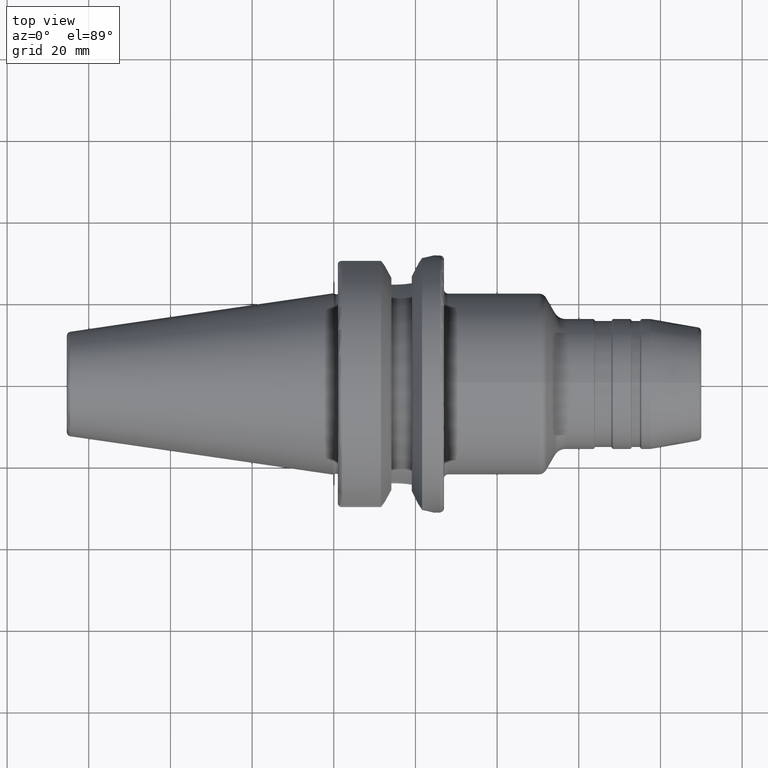
[diagram: clean part render]
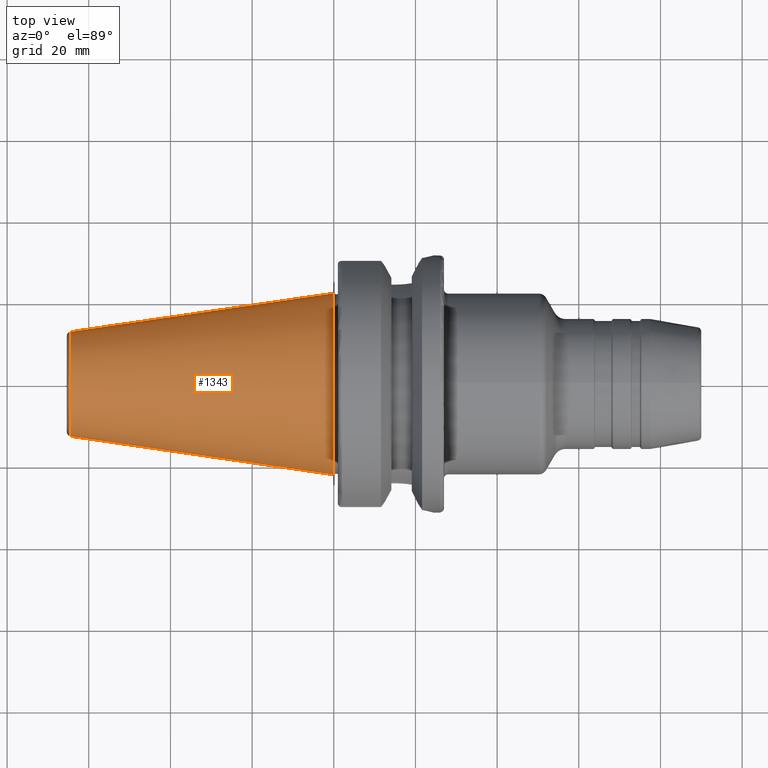
[diagram: same view with one face highlighted and labeled with its STEP entity id]
A machine part, top view. The second image highlights one B-rep face of the part: STEP entity #1343.
In plain terms, the highlighted conical surface has half-angle 8.297 deg.
Its self-contained STEP definition (entity closure, byte-faithful):
#114=CONICAL_SURFACE('',#1538,17.5186442890469,0.144812498238939);
#195=FACE_OUTER_BOUND('',#284,.T.);
#284=EDGE_LOOP('',(#1222,#1223,#1224,#1225,#1226));
#355=LINE('',#2618,#425);
#425=VECTOR('',#1956,17.5186442890469);
#516=CIRCLE('',#1535,12.8122885780937);
#517=CIRCLE('',#1536,12.8122885780937);
#519=CIRCLE('',#1539,22.225);
#640=VERTEX_POINT('',#2610);
#641=VERTEX_POINT('',#2611);
#642=VERTEX_POINT('',#2616);
#834=EDGE_CURVE('',#640,#641,#516,.T.);
#835=EDGE_CURVE('',#641,#640,#517,.T.);
#837=EDGE_CURVE('',#642,#642,#519,.T.);
#838=EDGE_CURVE('',#642,#640,#355,.T.);
#1222=ORIENTED_EDGE('',*,*,#837,.F.);
#1223=ORIENTED_EDGE('',*,*,#838,.T.);
#1224=ORIENTED_EDGE('',*,*,#834,.T.);
#1225=ORIENTED_EDGE('',*,*,#835,.T.);
#1226=ORIENTED_EDGE('',*,*,#838,.F.);
#1343=ADVANCED_FACE('',(#195),#114,.T.);
#1535=AXIS2_PLACEMENT_3D('',#2612,#1946,#1947);
#1536=AXIS2_PLACEMENT_3D('',#2613,#1948,#1949);
#1538=AXIS2_PLACEMENT_3D('',#2615,#1952,#1953);
#1539=AXIS2_PLACEMENT_3D('',#2617,#1954,#1955);
#1946=DIRECTION('center_axis',(1.,0.,0.));
#1947=DIRECTION('ref_axis',(0.,0.,-1.));
#1948=DIRECTION('center_axis',(1.,0.,0.));
#1949=DIRECTION('ref_axis',(0.,0.,-1.));
#1952=DIRECTION('center_axis',(1.,0.,0.));
#1953=DIRECTION('ref_axis',(0.,1.,0.));
#1954=DIRECTION('center_axis',(1.,0.,0.));
#1955=DIRECTION('ref_axis',(0.,0.,-1.));
#1956=DIRECTION('',(-0.989532981063281,0.144306893071729,1.76724974695192E-17));
#2610=CARTESIAN_POINT('',(-64.5443068930717,-12.8122885780937,-1.56905281969147E-15));
#2611=CARTESIAN_POINT('',(-64.5443068930717,-1.56905281969147E-15,12.8122885780937));
#2612=CARTESIAN_POINT('Origin',(-64.5443068930717,0.,0.));
#2613=CARTESIAN_POINT('Origin',(-64.5443068930717,0.,0.));
#2615=CARTESIAN_POINT('Origin',(-32.2721534465359,0.,0.));
#2616=CARTESIAN_POINT('',(4.44089209850063E-15,-22.225,-2.72177751110499E-15));
#2617=CARTESIAN_POINT('Origin',(0.,0.,0.));
#2618=CARTESIAN_POINT('',(-32.2721534465359,-17.5186442890469,-2.14541516539823E-15));